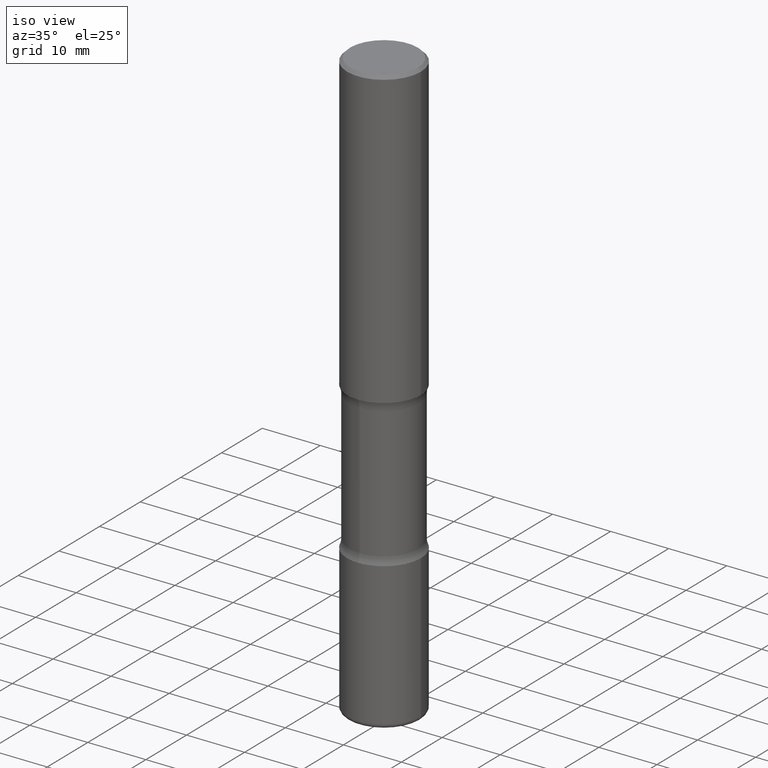
[diagram: clean part render]
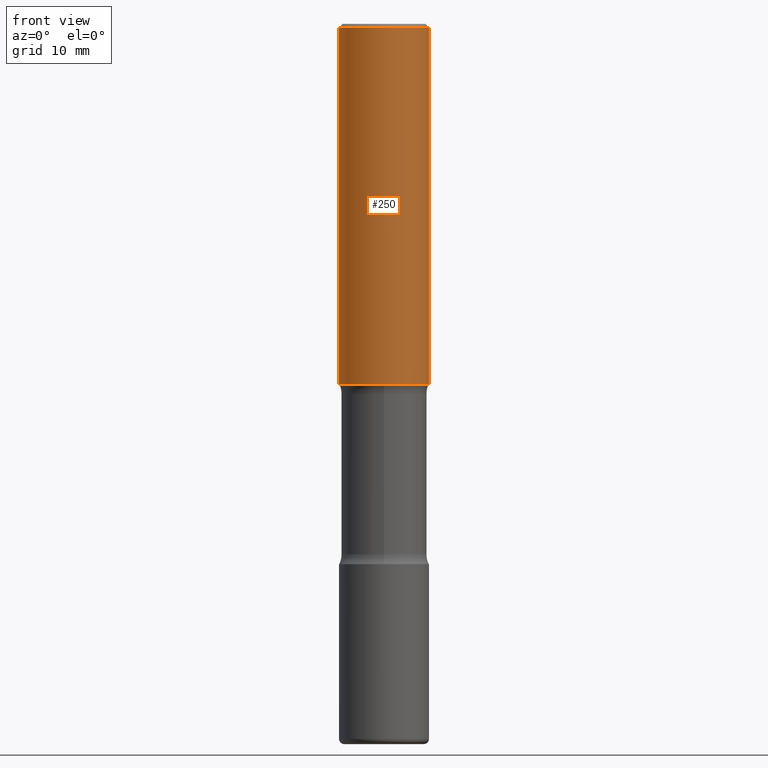
[diagram: tour spotlight — one face highlighted and labeled with its STEP entity id]
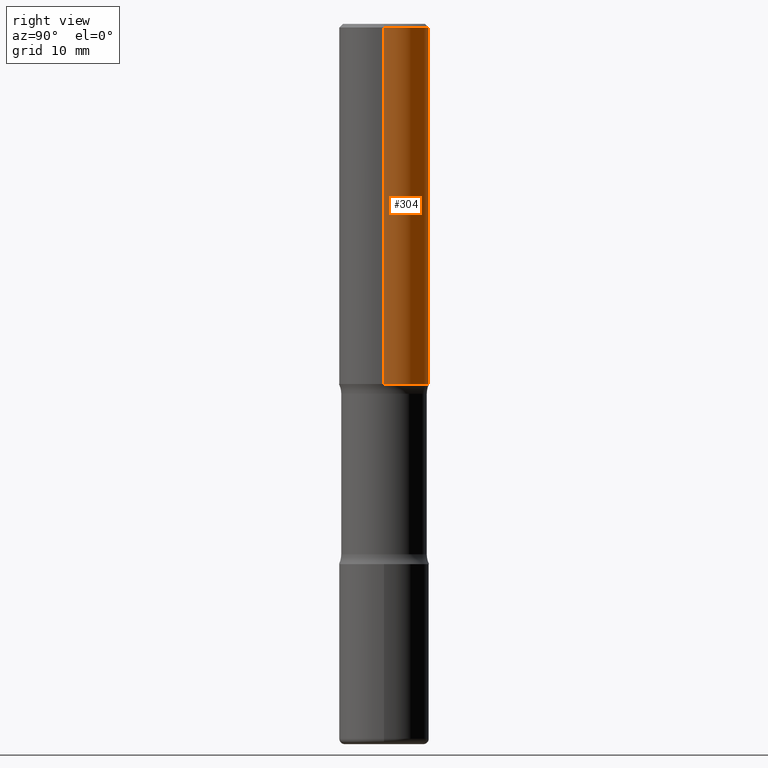
[diagram: tour spotlight — one face highlighted and labeled with its STEP entity id]
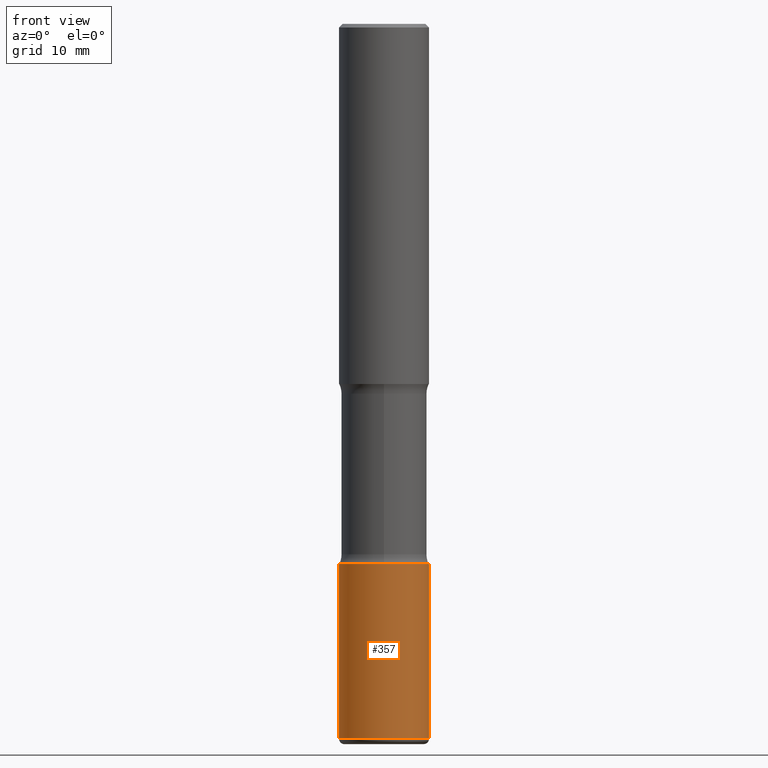
[diagram: tour spotlight — one face highlighted and labeled with its STEP entity id]
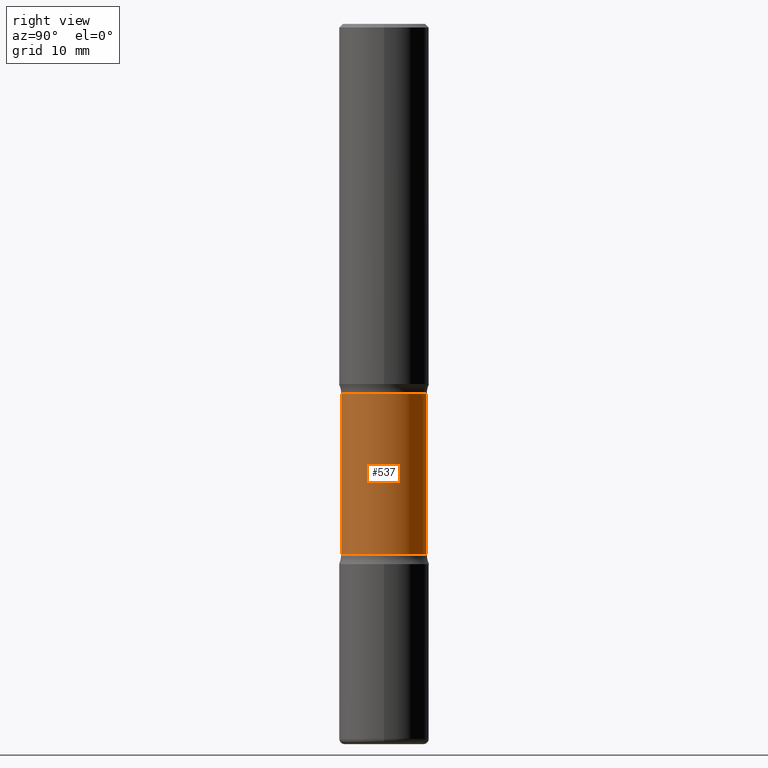
[diagram: tour spotlight — one face highlighted and labeled with its STEP entity id]
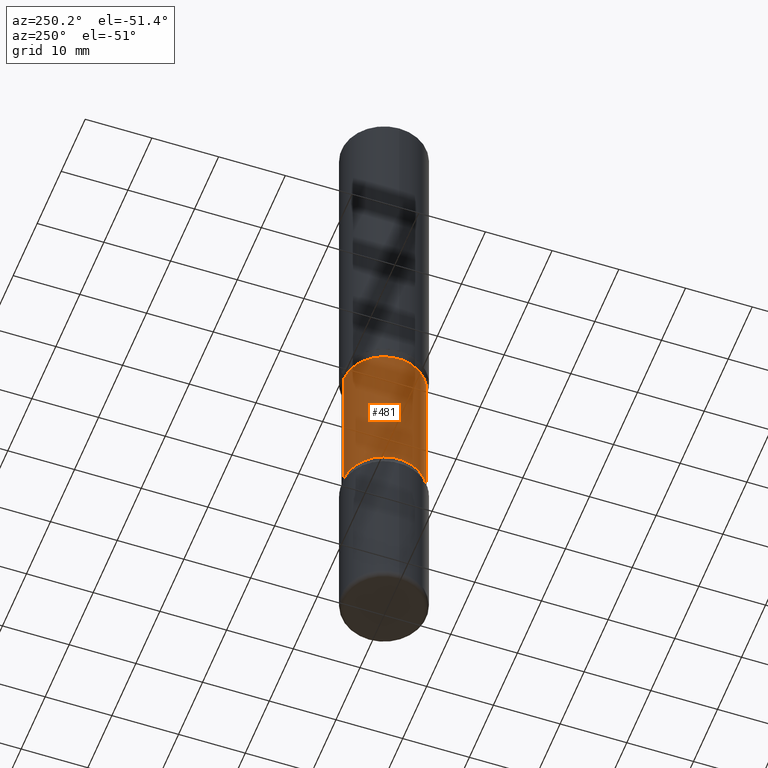
[diagram: tour spotlight — one face highlighted and labeled with its STEP entity id]
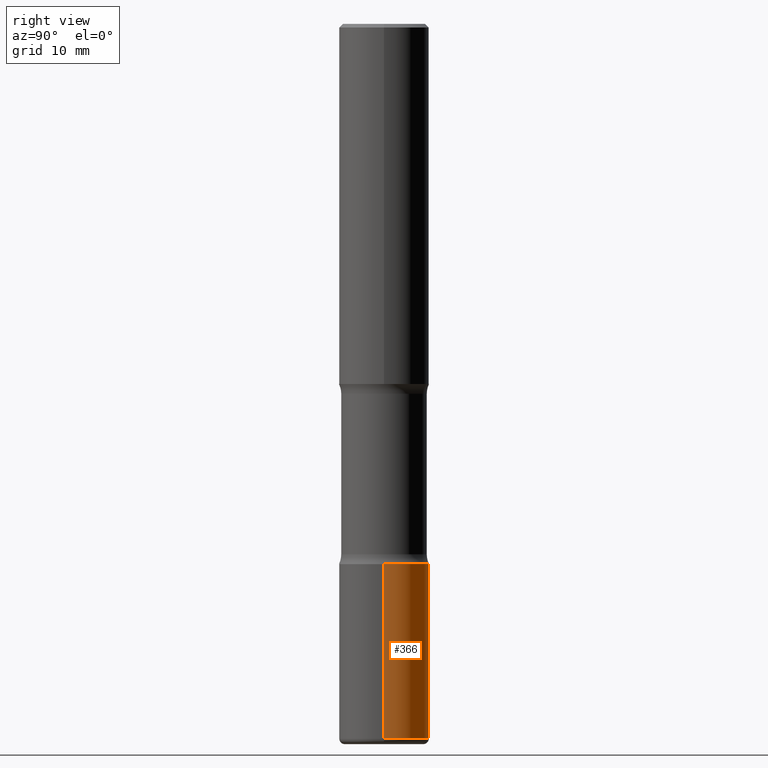
[diagram: tour spotlight — one face highlighted and labeled with its STEP entity id]
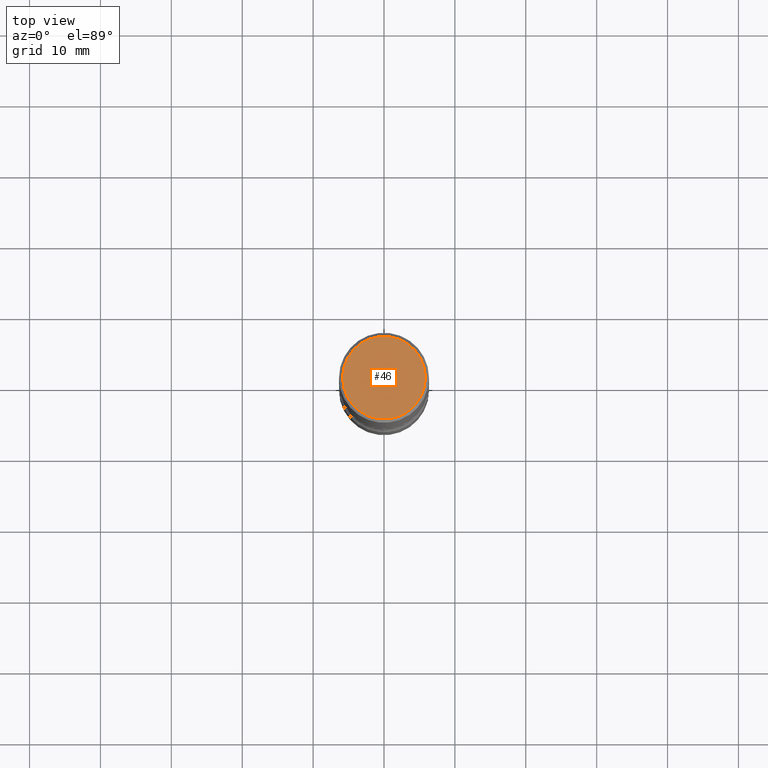
[diagram: tour spotlight — one face highlighted and labeled with its STEP entity id]
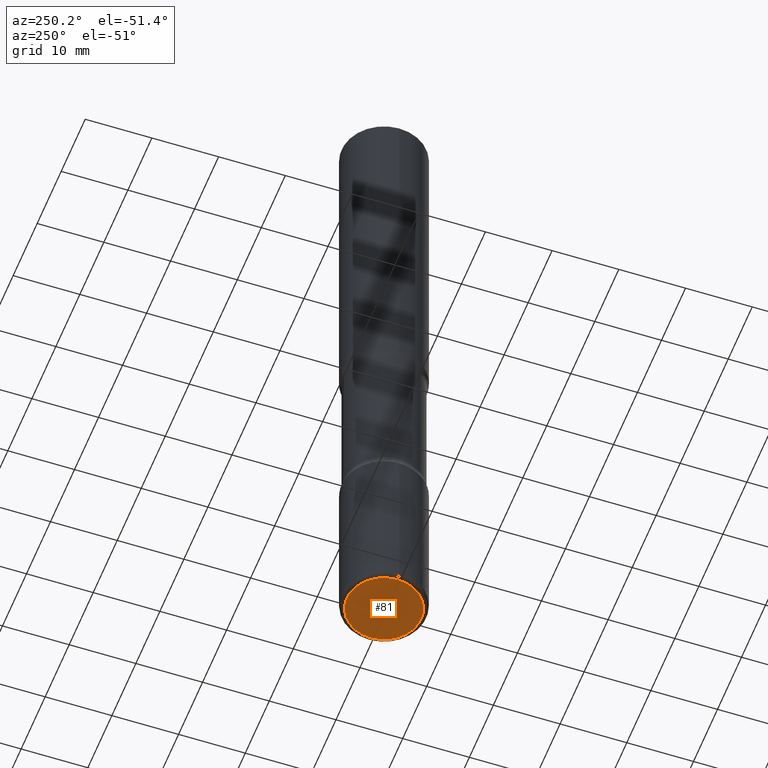
[diagram: tour spotlight — one face highlighted and labeled with its STEP entity id]
A machine part: a face-by-face anatomy tour. The part has 20 B-rep faces; the first image is the clean iso view, then the 8 largest visible faces are spotlighted one at a time (largest first), each with its STEP entity span.

Face 1 — front view, entity #250. In plain terms, the highlighted cylindrical surface (partial cylindrical patch) has radius 6.35 mm, axis along (-0, 0, 1).
Definition (entity closure, byte-faithful):
#13 = CARTESIAN_POINT ( 'NONE',  ( 0.2500000000000000555, -1.745740669421567269E-15, 1.219044193948984228E-29 ) ) ;
#28 = CARTESIAN_POINT ( 'NONE',  ( -0.2499999999999999167, 1.675911042644703182E-15, -0.02000000000000006981 ) ) ;
#30 = LINE ( 'NONE', #417, #554 ) ;
#86 = VERTEX_POINT ( 'NONE', #28 ) ;
#90 = CIRCLE ( 'NONE', #130, 0.2499999999999999167 ) ;
#98 = CARTESIAN_POINT ( 'NONE',  ( 4.890937612370273194E-29, -6.982962677686291165E-15, -2.000000000000000000 ) ) ;
#101 = DIRECTION ( 'NONE',  ( -2.445468806185136597E-29, 3.491481338843145583E-15, 1.000000000000000000 ) ) ;
#129 = VECTOR ( 'NONE', #181, 39.37007874015748143 ) ;
#130 = AXIS2_PLACEMENT_3D ( 'NONE', #324, #137, #265 ) ;
#136 = ORIENTED_EDGE ( 'NONE', *, *, #396, .F. ) ;
#137 = DIRECTION ( 'NONE',  ( -2.445468806185136597E-29, 3.491481338843145583E-15, 1.000000000000000000 ) ) ;
#144 = CARTESIAN_POINT ( 'NONE',  ( 0.000000000000000000, 0.000000000000000000, 0.000000000000000000 ) ) ;
#173 = ORIENTED_EDGE ( 'NONE', *, *, #300, .T. ) ;
#181 = DIRECTION ( 'NONE',  ( -2.445468806185136877E-29, 3.491481338843145188E-15, 1.000000000000000000 ) ) ;
#191 = LINE ( 'NONE', #13, #129 ) ;
#194 = DIRECTION ( 'NONE',  ( -2.445468806185136597E-29, 3.491481338843145583E-15, 1.000000000000000000 ) ) ;
#250 = ADVANCED_FACE ( 'NONE', ( #485 ), #277, .T. ) ;
#256 = VERTEX_POINT ( 'NONE', #314 ) ;
#259 = ORIENTED_EDGE ( 'NONE', *, *, #462, .F. ) ;
#263 = DIRECTION ( 'NONE',  ( 1.000000000000000000, -6.982962677686265922E-15, 0.000000000000000000 ) ) ;
#265 = DIRECTION ( 'NONE',  ( 1.000000000000000000, -6.982962677686267499E-15, 0.000000000000000000 ) ) ;
#269 = DIRECTION ( 'NONE',  ( -2.445468806185136877E-29, 3.491481338843145188E-15, 1.000000000000000000 ) ) ;
#275 = CARTESIAN_POINT ( 'NONE',  ( -0.2500000000000001665, -1.750039312831323809E-15, -2.000000000000000000 ) ) ;
#277 = CYLINDRICAL_SURFACE ( 'NONE', #359, 0.2500000000000000555 ) ;
#300 = EDGE_CURVE ( 'NONE', #439, #256, #374, .T. ) ;
#314 = CARTESIAN_POINT ( 'NONE',  ( 0.2500000000000001665, -8.728703347107858632E-15, -2.000000000000000000 ) ) ;
#324 = CARTESIAN_POINT ( 'NONE',  ( 4.890937612370289799E-31, -6.982962677686315028E-17, -0.02000000000000006981 ) ) ;
#342 = VERTEX_POINT ( 'NONE', #413 ) ;
#349 = EDGE_CURVE ( 'NONE', #256, #342, #191, .T. ) ;
#359 = AXIS2_PLACEMENT_3D ( 'NONE', #144, #194, #457 ) ;
#374 = CIRCLE ( 'NONE', #519, 0.2500000000000001665 ) ;
#396 = EDGE_CURVE ( 'NONE', #439, #86, #30, .T. ) ;
#413 = CARTESIAN_POINT ( 'NONE',  ( 0.2499999999999999167, -1.784954126219745400E-15, -0.02000000000000006981 ) ) ;
#417 = CARTESIAN_POINT ( 'NONE',  ( -0.2500000000000000555, 1.776356839400250859E-15, -1.229733772563726866E-29 ) ) ;
#426 = ORIENTED_EDGE ( 'NONE', *, *, #349, .T. ) ;
#438 = EDGE_LOOP ( 'NONE', ( #136, #173, #426, #259 ) ) ;
#439 = VERTEX_POINT ( 'NONE', #275 ) ;
#457 = DIRECTION ( 'NONE',  ( 1.000000000000000000, -6.982962677686267499E-15, 4.876176775795935793E-29 ) ) ;
#462 = EDGE_CURVE ( 'NONE', #86, #342, #90, .T. ) ;
#485 = FACE_OUTER_BOUND ( 'NONE', #438, .T. ) ;
#519 = AXIS2_PLACEMENT_3D ( 'NONE', #98, #101, #263 ) ;
#554 = VECTOR ( 'NONE', #269, 39.37007874015748143 ) ;

Face 2 — right view, entity #304. In plain terms, the highlighted cylindrical surface (partial cylindrical patch) has radius 6.35 mm, axis along (-0, 0, 1).
Definition (entity closure, byte-faithful):
#13 = CARTESIAN_POINT ( 'NONE',  ( 0.2500000000000000555, -1.745740669421567269E-15, 1.219044193948984228E-29 ) ) ;
#17 = DIRECTION ( 'NONE',  ( 1.000000000000000000, -6.982962677686267499E-15, 0.000000000000000000 ) ) ;
#18 = EDGE_CURVE ( 'NONE', #256, #439, #427, .T. ) ;
#28 = CARTESIAN_POINT ( 'NONE',  ( -0.2499999999999999167, 1.675911042644703182E-15, -0.02000000000000006981 ) ) ;
#30 = LINE ( 'NONE', #417, #554 ) ;
#45 = ORIENTED_EDGE ( 'NONE', *, *, #107, .F. ) ;
#69 = FACE_OUTER_BOUND ( 'NONE', #475, .T. ) ;
#86 = VERTEX_POINT ( 'NONE', #28 ) ;
#107 = EDGE_CURVE ( 'NONE', #342, #86, #218, .T. ) ;
#129 = VECTOR ( 'NONE', #181, 39.37007874015748143 ) ;
#181 = DIRECTION ( 'NONE',  ( -2.445468806185136877E-29, 3.491481338843145188E-15, 1.000000000000000000 ) ) ;
#182 = ORIENTED_EDGE ( 'NONE', *, *, #396, .T. ) ;
#191 = LINE ( 'NONE', #13, #129 ) ;
#192 = CARTESIAN_POINT ( 'NONE',  ( 4.890937612370273194E-29, -6.982962677686291165E-15, -2.000000000000000000 ) ) ;
#218 = CIRCLE ( 'NONE', #409, 0.2499999999999999167 ) ;
#256 = VERTEX_POINT ( 'NONE', #314 ) ;
#264 = CARTESIAN_POINT ( 'NONE',  ( 4.890937612370289799E-31, -6.982962677686315028E-17, -0.02000000000000006981 ) ) ;
#266 = CYLINDRICAL_SURFACE ( 'NONE', #350, 0.2500000000000000555 ) ;
#269 = DIRECTION ( 'NONE',  ( -2.445468806185136877E-29, 3.491481338843145188E-15, 1.000000000000000000 ) ) ;
#275 = CARTESIAN_POINT ( 'NONE',  ( -0.2500000000000001665, -1.750039312831323809E-15, -2.000000000000000000 ) ) ;
#290 = ORIENTED_EDGE ( 'NONE', *, *, #349, .F. ) ;
#304 = ADVANCED_FACE ( 'NONE', ( #69 ), #266, .T. ) ;
#314 = CARTESIAN_POINT ( 'NONE',  ( 0.2500000000000001665, -8.728703347107858632E-15, -2.000000000000000000 ) ) ;
#342 = VERTEX_POINT ( 'NONE', #413 ) ;
#349 = EDGE_CURVE ( 'NONE', #256, #342, #191, .T. ) ;
#350 = AXIS2_PLACEMENT_3D ( 'NONE', #447, #503, #460 ) ;
#376 = DIRECTION ( 'NONE',  ( -2.445468806185136597E-29, 3.491481338843145583E-15, 1.000000000000000000 ) ) ;
#396 = EDGE_CURVE ( 'NONE', #439, #86, #30, .T. ) ;
#409 = AXIS2_PLACEMENT_3D ( 'NONE', #264, #446, #17 ) ;
#413 = CARTESIAN_POINT ( 'NONE',  ( 0.2499999999999999167, -1.784954126219745400E-15, -0.02000000000000006981 ) ) ;
#417 = CARTESIAN_POINT ( 'NONE',  ( -0.2500000000000000555, 1.776356839400250859E-15, -1.229733772563726866E-29 ) ) ;
#427 = CIRCLE ( 'NONE', #495, 0.2500000000000001665 ) ;
#439 = VERTEX_POINT ( 'NONE', #275 ) ;
#443 = ORIENTED_EDGE ( 'NONE', *, *, #18, .T. ) ;
#446 = DIRECTION ( 'NONE',  ( -2.445468806185136597E-29, 3.491481338843145583E-15, 1.000000000000000000 ) ) ;
#447 = CARTESIAN_POINT ( 'NONE',  ( 0.000000000000000000, 0.000000000000000000, 0.000000000000000000 ) ) ;
#460 = DIRECTION ( 'NONE',  ( 1.000000000000000000, -6.982962677686267499E-15, 4.876176775795935793E-29 ) ) ;
#461 = DIRECTION ( 'NONE',  ( 1.000000000000000000, -6.982962677686265922E-15, 0.000000000000000000 ) ) ;
#475 = EDGE_LOOP ( 'NONE', ( #443, #182, #45, #290 ) ) ;
#495 = AXIS2_PLACEMENT_3D ( 'NONE', #192, #376, #461 ) ;
#503 = DIRECTION ( 'NONE',  ( -2.445468806185136597E-29, 3.491481338843145583E-15, 1.000000000000000000 ) ) ;
#554 = VECTOR ( 'NONE', #269, 39.37007874015748143 ) ;

Face 3 — front view, entity #357. In plain terms, the highlighted cylindrical surface (partial cylindrical patch) has radius 6.35 mm, axis along (-0, 0, 1).
Definition (entity closure, byte-faithful):
#9 = AXIS2_PLACEMENT_3D ( 'NONE', #35, #360, #548 ) ;
#10 = EDGE_CURVE ( 'NONE', #165, #477, #252, .T. ) ;
#23 = DIRECTION ( 'NONE',  ( -2.445468806185136597E-29, 3.491481338843145583E-15, 1.000000000000000000 ) ) ;
#27 = DIRECTION ( 'NONE',  ( 1.000000000000000000, -6.982962677686267499E-15, 0.000000000000000000 ) ) ;
#35 = CARTESIAN_POINT ( 'NONE',  ( 7.336406418555409790E-29, -1.047444401652943635E-14, -3.000000000000000444 ) ) ;
#40 = VERTEX_POINT ( 'NONE', #486 ) ;
#41 = ORIENTED_EDGE ( 'NONE', *, *, #10, .F. ) ;
#53 = ORIENTED_EDGE ( 'NONE', *, *, #267, .T. ) ;
#100 = EDGE_CURVE ( 'NONE', #477, #385, #483, .T. ) ;
#108 = CARTESIAN_POINT ( 'NONE',  ( 0.2500000000000002776, -1.222018468595100619E-14, -3.000000000000000444 ) ) ;
#139 = CARTESIAN_POINT ( 'NONE',  ( 0.000000000000000000, 0.000000000000000000, 0.000000000000000000 ) ) ;
#156 = VECTOR ( 'NONE', #158, 39.37007874015748143 ) ;
#158 = DIRECTION ( 'NONE',  ( -2.445468806185136877E-29, 3.491481338843145188E-15, 1.000000000000000000 ) ) ;
#165 = VERTEX_POINT ( 'NONE', #289 ) ;
#172 = EDGE_CURVE ( 'NONE', #165, #40, #254, .T. ) ;
#184 = DIRECTION ( 'NONE',  ( -2.445468806185136597E-29, 3.491481338843145583E-15, 1.000000000000000000 ) ) ;
#214 = AXIS2_PLACEMENT_3D ( 'NONE', #139, #23, #306 ) ;
#222 = CARTESIAN_POINT ( 'NONE',  ( 0.2500000000000003331, -1.745740669421569044E-15, 1.219044193948985630E-29 ) ) ;
#232 = CARTESIAN_POINT ( 'NONE',  ( -0.2500000000000002776, -1.039145562646811219E-14, -3.000000000000000444 ) ) ;
#236 = DIRECTION ( 'NONE',  ( -2.445468806185136877E-29, 3.491481338843145188E-15, 1.000000000000000000 ) ) ;
#252 = LINE ( 'NONE', #312, #533 ) ;
#254 = CIRCLE ( 'NONE', #526, 0.2500000000000003886 ) ;
#267 = EDGE_CURVE ( 'NONE', #40, #385, #410, .T. ) ;
#289 = CARTESIAN_POINT ( 'NONE',  ( -0.2500000000000002220, -1.208482407580703850E-14, -3.970000000000000639 ) ) ;
#306 = DIRECTION ( 'NONE',  ( 1.000000000000000000, -6.982962677686266711E-15, 4.876176775795935793E-29 ) ) ;
#312 = CARTESIAN_POINT ( 'NONE',  ( -0.2500000000000003331, 1.776356839400252831E-15, -1.229733772563727987E-29 ) ) ;
#327 = ORIENTED_EDGE ( 'NONE', *, *, #100, .F. ) ;
#346 = ORIENTED_EDGE ( 'NONE', *, *, #172, .T. ) ;
#354 = FACE_OUTER_BOUND ( 'NONE', #550, .T. ) ;
#357 = ADVANCED_FACE ( 'NONE', ( #354 ), #530, .T. ) ;
#360 = DIRECTION ( 'NONE',  ( -2.445468806185136597E-29, 3.491481338843145583E-15, 1.000000000000000000 ) ) ;
#385 = VERTEX_POINT ( 'NONE', #108 ) ;
#410 = LINE ( 'NONE', #222, #156 ) ;
#474 = CARTESIAN_POINT ( 'NONE',  ( 9.708511160554993993E-29, -1.386118091520729054E-14, -3.970000000000000639 ) ) ;
#477 = VERTEX_POINT ( 'NONE', #232 ) ;
#483 = CIRCLE ( 'NONE', #9, 0.2500000000000002776 ) ;
#486 = CARTESIAN_POINT ( 'NONE',  ( 0.2500000000000002220, -1.560692158462885722E-14, -3.970000000000000639 ) ) ;
#526 = AXIS2_PLACEMENT_3D ( 'NONE', #474, #184, #27 ) ;
#530 = CYLINDRICAL_SURFACE ( 'NONE', #214, 0.2500000000000003331 ) ;
#533 = VECTOR ( 'NONE', #236, 39.37007874015748143 ) ;
#548 = DIRECTION ( 'NONE',  ( 1.000000000000000000, -6.982962677686270655E-15, 0.000000000000000000 ) ) ;
#550 = EDGE_LOOP ( 'NONE', ( #41, #346, #53, #327 ) ) ;

Face 4 — right view, entity #537. In plain terms, the highlighted cylindrical surface (partial cylindrical patch) has radius 6.0325 mm, axis along (0, -0, -1).
Definition (entity closure, byte-faithful):
#33 = CARTESIAN_POINT ( 'NONE',  ( 9.866784870866931853E-29, -1.384432990936266734E-14, -4.000000000000000000 ) ) ;
#58 = CARTESIAN_POINT ( 'NONE',  ( 1.658453635950560525E-15, 0.2374999999999897748, -2.945513763205741764 ) ) ;
#61 = CARTESIAN_POINT ( 'NONE',  ( -1.629368274470640415E-15, -0.2375000000000139222, -3.999999999999999556 ) ) ;
#64 = AXIS2_PLACEMENT_3D ( 'NONE', #33, #322, #117 ) ;
#72 = DIRECTION ( 'NONE',  ( 6.982962677686265133E-15, 1.000000000000000000, -3.450755360418014766E-15 ) ) ;
#80 = VERTEX_POINT ( 'NONE', #279 ) ;
#112 = EDGE_CURVE ( 'NONE', #199, #515, #298, .T. ) ;
#114 = DIRECTION ( 'NONE',  ( 6.982962677686265133E-15, 1.000000000000000000, -2.300503573612010239E-15 ) ) ;
#116 = ORIENTED_EDGE ( 'NONE', *, *, #125, .F. ) ;
#117 = DIRECTION ( 'NONE',  ( 6.982962677686265133E-15, 1.000000000000000000, -2.300503573612010239E-15 ) ) ;
#125 = EDGE_CURVE ( 'NONE', #199, #347, #149, .T. ) ;
#149 = LINE ( 'NONE', #272, #513 ) ;
#154 = CYLINDRICAL_SURFACE ( 'NONE', #64, 0.2375000000000000999 ) ;
#185 = CARTESIAN_POINT ( 'NONE',  ( 4.943898765775623630E-29, -7.288170524422749615E-15, -2.054486236794258680 ) ) ;
#199 = VERTEX_POINT ( 'NONE', #538 ) ;
#205 = CIRCLE ( 'NONE', #428, 0.2375000000000000722 ) ;
#272 = CARTESIAN_POINT ( 'NONE',  ( 1.658453635950587543E-15, 0.2374999999999862776, -4.000000000000000888 ) ) ;
#279 = CARTESIAN_POINT ( 'NONE',  ( -1.672246386956739071E-15, -0.2375000000000103417, -2.945513763205740876 ) ) ;
#298 = CIRCLE ( 'NONE', #383, 0.2375000000000001277 ) ;
#322 = DIRECTION ( 'NONE',  ( 2.530378452311521502E-29, -3.369885892833230986E-15, -1.000000000000000000 ) ) ;
#338 = ORIENTED_EDGE ( 'NONE', *, *, #341, .F. ) ;
#341 = EDGE_CURVE ( 'NONE', #347, #80, #205, .T. ) ;
#347 = VERTEX_POINT ( 'NONE', #58 ) ;
#365 = LINE ( 'NONE', #61, #384 ) ;
#372 = CARTESIAN_POINT ( 'NONE',  ( 7.198535619023675570E-29, -1.029083161580289368E-14, -2.945513763205741320 ) ) ;
#383 = AXIS2_PLACEMENT_3D ( 'NONE', #185, #458, #72 ) ;
#384 = VECTOR ( 'NONE', #451, 39.37007874015748143 ) ;
#422 = ORIENTED_EDGE ( 'NONE', *, *, #469, .T. ) ;
#424 = FACE_OUTER_BOUND ( 'NONE', #508, .T. ) ;
#428 = AXIS2_PLACEMENT_3D ( 'NONE', #372, #490, #114 ) ;
#444 = CARTESIAN_POINT ( 'NONE',  ( -1.672246386956763723E-15, -0.2375000000000074274, -2.054486236794258236 ) ) ;
#451 = DIRECTION ( 'NONE',  ( 2.530378452311521502E-29, -3.369885892833230592E-15, -1.000000000000000000 ) ) ;
#456 = DIRECTION ( 'NONE',  ( 2.530378452311521502E-29, -3.369885892833230592E-15, -1.000000000000000000 ) ) ;
#458 = DIRECTION ( 'NONE',  ( 2.530378452311521502E-29, -3.369885892833230986E-15, -1.000000000000000000 ) ) ;
#469 = EDGE_CURVE ( 'NONE', #515, #80, #365, .T. ) ;
#490 = DIRECTION ( 'NONE',  ( 2.530378452311521502E-29, -3.369885892833230986E-15, -1.000000000000000000 ) ) ;
#508 = EDGE_LOOP ( 'NONE', ( #524, #422, #338, #116 ) ) ;
#513 = VECTOR ( 'NONE', #456, 39.37007874015748143 ) ;
#515 = VERTEX_POINT ( 'NONE', #444 ) ;
#524 = ORIENTED_EDGE ( 'NONE', *, *, #112, .T. ) ;
#537 = ADVANCED_FACE ( 'NONE', ( #424 ), #154, .T. ) ;
#538 = CARTESIAN_POINT ( 'NONE',  ( 1.658453635950538436E-15, 0.2374999999999928557, -2.054486236794259568 ) ) ;

Face 5 — auxiliary view, entity #481. In plain terms, the highlighted cylindrical surface (partial cylindrical patch) has radius 6.0325 mm, axis along (0, -0, -1).
Definition (entity closure, byte-faithful):
#25 = CYLINDRICAL_SURFACE ( 'NONE', #242, 0.2375000000000000999 ) ;
#31 = DIRECTION ( 'NONE',  ( 2.530378452311521502E-29, -3.369885892833230986E-15, -1.000000000000000000 ) ) ;
#42 = AXIS2_PLACEMENT_3D ( 'NONE', #65, #31, #487 ) ;
#58 = CARTESIAN_POINT ( 'NONE',  ( 1.658453635950560525E-15, 0.2374999999999897748, -2.945513763205741764 ) ) ;
#61 = CARTESIAN_POINT ( 'NONE',  ( -1.629368274470640415E-15, -0.2375000000000139222, -3.999999999999999556 ) ) ;
#65 = CARTESIAN_POINT ( 'NONE',  ( 7.198535619023675570E-29, -1.029083161580289368E-14, -2.945513763205741320 ) ) ;
#68 = EDGE_CURVE ( 'NONE', #515, #199, #291, .T. ) ;
#80 = VERTEX_POINT ( 'NONE', #279 ) ;
#96 = DIRECTION ( 'NONE',  ( 2.530378452311521502E-29, -3.369885892833230986E-15, -1.000000000000000000 ) ) ;
#111 = CARTESIAN_POINT ( 'NONE',  ( 4.943898765775623630E-29, -7.288170524422749615E-15, -2.054486236794258680 ) ) ;
#125 = EDGE_CURVE ( 'NONE', #199, #347, #149, .T. ) ;
#134 = EDGE_LOOP ( 'NONE', ( #216, #257, #294, #478 ) ) ;
#149 = LINE ( 'NONE', #272, #513 ) ;
#199 = VERTEX_POINT ( 'NONE', #538 ) ;
#216 = ORIENTED_EDGE ( 'NONE', *, *, #469, .F. ) ;
#242 = AXIS2_PLACEMENT_3D ( 'NONE', #480, #96, #489 ) ;
#248 = AXIS2_PLACEMENT_3D ( 'NONE', #111, #407, #535 ) ;
#257 = ORIENTED_EDGE ( 'NONE', *, *, #68, .T. ) ;
#272 = CARTESIAN_POINT ( 'NONE',  ( 1.658453635950587543E-15, 0.2374999999999862776, -4.000000000000000888 ) ) ;
#279 = CARTESIAN_POINT ( 'NONE',  ( -1.672246386956739071E-15, -0.2375000000000103417, -2.945513763205740876 ) ) ;
#284 = EDGE_CURVE ( 'NONE', #80, #347, #545, .T. ) ;
#291 = CIRCLE ( 'NONE', #248, 0.2375000000000001277 ) ;
#294 = ORIENTED_EDGE ( 'NONE', *, *, #125, .T. ) ;
#347 = VERTEX_POINT ( 'NONE', #58 ) ;
#365 = LINE ( 'NONE', #61, #384 ) ;
#384 = VECTOR ( 'NONE', #451, 39.37007874015748143 ) ;
#407 = DIRECTION ( 'NONE',  ( 2.530378452311521502E-29, -3.369885892833230986E-15, -1.000000000000000000 ) ) ;
#412 = FACE_OUTER_BOUND ( 'NONE', #134, .T. ) ;
#444 = CARTESIAN_POINT ( 'NONE',  ( -1.672246386956763723E-15, -0.2375000000000074274, -2.054486236794258236 ) ) ;
#451 = DIRECTION ( 'NONE',  ( 2.530378452311521502E-29, -3.369885892833230592E-15, -1.000000000000000000 ) ) ;
#456 = DIRECTION ( 'NONE',  ( 2.530378452311521502E-29, -3.369885892833230592E-15, -1.000000000000000000 ) ) ;
#469 = EDGE_CURVE ( 'NONE', #515, #80, #365, .T. ) ;
#478 = ORIENTED_EDGE ( 'NONE', *, *, #284, .F. ) ;
#480 = CARTESIAN_POINT ( 'NONE',  ( 9.866784870866931853E-29, -1.384432990936266734E-14, -4.000000000000000000 ) ) ;
#481 = ADVANCED_FACE ( 'NONE', ( #412 ), #25, .T. ) ;
#487 = DIRECTION ( 'NONE',  ( 6.982962677686265133E-15, 1.000000000000000000, -2.300503573612010239E-15 ) ) ;
#489 = DIRECTION ( 'NONE',  ( 6.982962677686265133E-15, 1.000000000000000000, -2.300503573612010239E-15 ) ) ;
#513 = VECTOR ( 'NONE', #456, 39.37007874015748143 ) ;
#515 = VERTEX_POINT ( 'NONE', #444 ) ;
#535 = DIRECTION ( 'NONE',  ( 6.982962677686265133E-15, 1.000000000000000000, -3.450755360418014766E-15 ) ) ;
#538 = CARTESIAN_POINT ( 'NONE',  ( 1.658453635950538436E-15, 0.2374999999999928557, -2.054486236794259568 ) ) ;
#545 = CIRCLE ( 'NONE', #42, 0.2375000000000000722 ) ;

Face 6 — right view, entity #366. In plain terms, the highlighted cylindrical surface (partial cylindrical patch) has radius 6.35 mm, axis along (-0, 0, 1).
Definition (entity closure, byte-faithful):
#10 = EDGE_CURVE ( 'NONE', #165, #477, #252, .T. ) ;
#11 = ORIENTED_EDGE ( 'NONE', *, *, #138, .F. ) ;
#36 = ORIENTED_EDGE ( 'NONE', *, *, #267, .F. ) ;
#40 = VERTEX_POINT ( 'NONE', #486 ) ;
#54 = FACE_OUTER_BOUND ( 'NONE', #302, .T. ) ;
#76 = ORIENTED_EDGE ( 'NONE', *, *, #10, .T. ) ;
#87 = EDGE_CURVE ( 'NONE', #40, #165, #496, .T. ) ;
#88 = AXIS2_PLACEMENT_3D ( 'NONE', #153, #321, #123 ) ;
#94 = ORIENTED_EDGE ( 'NONE', *, *, #87, .T. ) ;
#99 = DIRECTION ( 'NONE',  ( 1.000000000000000000, -6.982962677686267499E-15, 0.000000000000000000 ) ) ;
#108 = CARTESIAN_POINT ( 'NONE',  ( 0.2500000000000002776, -1.222018468595100619E-14, -3.000000000000000444 ) ) ;
#123 = DIRECTION ( 'NONE',  ( 1.000000000000000000, -6.982962677686270655E-15, 0.000000000000000000 ) ) ;
#138 = EDGE_CURVE ( 'NONE', #385, #477, #323, .T. ) ;
#153 = CARTESIAN_POINT ( 'NONE',  ( 7.336406418555409790E-29, -1.047444401652943635E-14, -3.000000000000000444 ) ) ;
#156 = VECTOR ( 'NONE', #158, 39.37007874015748143 ) ;
#158 = DIRECTION ( 'NONE',  ( -2.445468806185136877E-29, 3.491481338843145188E-15, 1.000000000000000000 ) ) ;
#165 = VERTEX_POINT ( 'NONE', #289 ) ;
#206 = CARTESIAN_POINT ( 'NONE',  ( 0.000000000000000000, 0.000000000000000000, 0.000000000000000000 ) ) ;
#222 = CARTESIAN_POINT ( 'NONE',  ( 0.2500000000000003331, -1.745740669421569044E-15, 1.219044193948985630E-29 ) ) ;
#225 = CYLINDRICAL_SURFACE ( 'NONE', #292, 0.2500000000000003331 ) ;
#232 = CARTESIAN_POINT ( 'NONE',  ( -0.2500000000000002776, -1.039145562646811219E-14, -3.000000000000000444 ) ) ;
#236 = DIRECTION ( 'NONE',  ( -2.445468806185136877E-29, 3.491481338843145188E-15, 1.000000000000000000 ) ) ;
#252 = LINE ( 'NONE', #312, #533 ) ;
#267 = EDGE_CURVE ( 'NONE', #40, #385, #410, .T. ) ;
#289 = CARTESIAN_POINT ( 'NONE',  ( -0.2500000000000002220, -1.208482407580703850E-14, -3.970000000000000639 ) ) ;
#292 = AXIS2_PLACEMENT_3D ( 'NONE', #206, #348, #441 ) ;
#302 = EDGE_LOOP ( 'NONE', ( #94, #76, #11, #36 ) ) ;
#312 = CARTESIAN_POINT ( 'NONE',  ( -0.2500000000000003331, 1.776356839400252831E-15, -1.229733772563727987E-29 ) ) ;
#321 = DIRECTION ( 'NONE',  ( -2.445468806185136597E-29, 3.491481338843145583E-15, 1.000000000000000000 ) ) ;
#323 = CIRCLE ( 'NONE', #88, 0.2500000000000002776 ) ;
#334 = AXIS2_PLACEMENT_3D ( 'NONE', #411, #505, #99 ) ;
#348 = DIRECTION ( 'NONE',  ( -2.445468806185136597E-29, 3.491481338843145583E-15, 1.000000000000000000 ) ) ;
#366 = ADVANCED_FACE ( 'NONE', ( #54 ), #225, .T. ) ;
#385 = VERTEX_POINT ( 'NONE', #108 ) ;
#410 = LINE ( 'NONE', #222, #156 ) ;
#411 = CARTESIAN_POINT ( 'NONE',  ( 9.708511160554993993E-29, -1.386118091520729054E-14, -3.970000000000000639 ) ) ;
#441 = DIRECTION ( 'NONE',  ( 1.000000000000000000, -6.982962677686266711E-15, 4.876176775795935793E-29 ) ) ;
#477 = VERTEX_POINT ( 'NONE', #232 ) ;
#486 = CARTESIAN_POINT ( 'NONE',  ( 0.2500000000000002220, -1.560692158462885722E-14, -3.970000000000000639 ) ) ;
#496 = CIRCLE ( 'NONE', #334, 0.2500000000000003886 ) ;
#505 = DIRECTION ( 'NONE',  ( -2.445468806185136597E-29, 3.491481338843145583E-15, 1.000000000000000000 ) ) ;
#533 = VECTOR ( 'NONE', #236, 39.37007874015748143 ) ;

Face 7 — top view, entity #46. In plain terms, the highlighted planar face has unit normal (0, -0, -1).
Definition (entity closure, byte-faithful):
#39 = EDGE_CURVE ( 'NONE', #525, #397, #297, .T. ) ;
#43 = EDGE_LOOP ( 'NONE', ( #401, #207 ) ) ;
#46 = ADVANCED_FACE ( 'NONE', ( #415 ), #419, .F. ) ;
#55 = DIRECTION ( 'NONE',  ( -1.000000000000000000, 6.982962677686265922E-15, -4.876176775795935793E-29 ) ) ;
#62 = AXIS2_PLACEMENT_3D ( 'NONE', #140, #160, #308 ) ;
#78 = CARTESIAN_POINT ( 'NONE',  ( 0.000000000000000000, 0.000000000000000000, 0.000000000000000000 ) ) ;
#140 = CARTESIAN_POINT ( 'NONE',  ( 0.000000000000000000, 0.000000000000000000, 0.000000000000000000 ) ) ;
#160 = DIRECTION ( 'NONE',  ( -2.445468806185136597E-29, 3.491481338843145583E-15, 1.000000000000000000 ) ) ;
#207 = ORIENTED_EDGE ( 'NONE', *, *, #371, .T. ) ;
#226 = DIRECTION ( 'NONE',  ( 2.438088387897960049E-29, -3.491481338843145188E-15, -1.000000000000000000 ) ) ;
#283 = CARTESIAN_POINT ( 'NONE',  ( -0.2299999999999998990, 1.640996229256271928E-15, -1.135408596578605420E-29 ) ) ;
#295 = DIRECTION ( 'NONE',  ( -2.445468806185136597E-29, 3.491481338843145583E-15, 1.000000000000000000 ) ) ;
#297 = CIRCLE ( 'NONE', #62, 0.2299999999999998990 ) ;
#308 = DIRECTION ( 'NONE',  ( 1.000000000000000000, -6.982962677686267499E-15, 4.876176775795936353E-29 ) ) ;
#309 = CARTESIAN_POINT ( 'NONE',  ( 0.2299999999999998990, -1.681434332853598617E-15, 1.149527484987432660E-29 ) ) ;
#318 = DIRECTION ( 'NONE',  ( 1.000000000000000000, -6.982962677686267499E-15, 4.876176775795936353E-29 ) ) ;
#320 = AXIS2_PLACEMENT_3D ( 'NONE', #500, #226, #55 ) ;
#371 = EDGE_CURVE ( 'NONE', #397, #525, #442, .T. ) ;
#397 = VERTEX_POINT ( 'NONE', #309 ) ;
#401 = ORIENTED_EDGE ( 'NONE', *, *, #39, .T. ) ;
#415 = FACE_OUTER_BOUND ( 'NONE', #43, .T. ) ;
#419 = PLANE ( 'NONE',  #320 ) ;
#442 = CIRCLE ( 'NONE', #452, 0.2299999999999998990 ) ;
#452 = AXIS2_PLACEMENT_3D ( 'NONE', #78, #295, #318 ) ;
#500 = CARTESIAN_POINT ( 'NONE',  ( 1.606081415867840476E-15, 0.2299999999999998990, -8.030407079339231961E-16 ) ) ;
#525 = VERTEX_POINT ( 'NONE', #283 ) ;

Face 8 — auxiliary view, entity #81. In plain terms, the highlighted planar face has unit normal (0, -0, -1).
Definition (entity closure, byte-faithful):
#2 = CIRCLE ( 'NONE', #307, 0.2200000000000003897 ) ;
#15 = DIRECTION ( 'NONE',  ( -2.445468806185136597E-29, 3.491481338843145583E-15, 1.000000000000000000 ) ) ;
#32 = DIRECTION ( 'NONE',  ( -1.000000000000000000, 6.982962677686265922E-15, -4.876176775795935793E-29 ) ) ;
#44 = AXIS2_PLACEMENT_3D ( 'NONE', #268, #282, #32 ) ;
#70 = ORIENTED_EDGE ( 'NONE', *, *, #258, .F. ) ;
#81 = ADVANCED_FACE ( 'NONE', ( #102 ), #195, .T. ) ;
#102 = FACE_OUTER_BOUND ( 'NONE', #285, .T. ) ;
#155 = CARTESIAN_POINT ( 'NONE',  ( -0.2200000000000003897, -1.224377770625369951E-14, -4.000000000000000000 ) ) ;
#186 = CIRCLE ( 'NONE', #335, 0.2200000000000003897 ) ;
#187 = CARTESIAN_POINT ( 'NONE',  ( 0.2200000000000003897, -1.550217714446356385E-14, -4.000000000000000000 ) ) ;
#195 = PLANE ( 'NONE',  #44 ) ;
#219 = ORIENTED_EDGE ( 'NONE', *, *, #430, .F. ) ;
#244 = VERTEX_POINT ( 'NONE', #187 ) ;
#258 = EDGE_CURVE ( 'NONE', #395, #244, #186, .T. ) ;
#268 = CARTESIAN_POINT ( 'NONE',  ( 9.781875224740546387E-29, -1.396592535537258233E-14, -4.000000000000000000 ) ) ;
#270 = DIRECTION ( 'NONE',  ( 1.000000000000000000, -6.982962677686267499E-15, 0.000000000000000000 ) ) ;
#281 = DIRECTION ( 'NONE',  ( -2.445468806185136597E-29, 3.491481338843145583E-15, 1.000000000000000000 ) ) ;
#282 = DIRECTION ( 'NONE',  ( 2.438088387897960049E-29, -3.491481338843145188E-15, -1.000000000000000000 ) ) ;
#285 = EDGE_LOOP ( 'NONE', ( #219, #70 ) ) ;
#307 = AXIS2_PLACEMENT_3D ( 'NONE', #532, #15, #405 ) ;
#335 = AXIS2_PLACEMENT_3D ( 'NONE', #418, #281, #270 ) ;
#395 = VERTEX_POINT ( 'NONE', #155 ) ;
#405 = DIRECTION ( 'NONE',  ( 1.000000000000000000, -6.982962677686267499E-15, 0.000000000000000000 ) ) ;
#418 = CARTESIAN_POINT ( 'NONE',  ( 9.781875224740546387E-29, -1.396592535537258233E-14, -4.000000000000000000 ) ) ;
#430 = EDGE_CURVE ( 'NONE', #244, #395, #2, .T. ) ;
#532 = CARTESIAN_POINT ( 'NONE',  ( 9.781875224740546387E-29, -1.396592535537258233E-14, -4.000000000000000000 ) ) ;